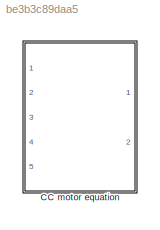
MODEL slx_be3b3c89daa5
KIND library
CONFIG AbsTol = auto
CONFIG EnableMultiTasking = off
CONFIG FixedStep = auto
CONFIG MaxStep = auto
CONFIG MinStep = auto
CONFIG RelTol = 1e-3
CONFIG SampleTimeConstraint = Unconstrained
CONFIG Solver = VariableStepAuto
CONFIG SolverName = VariableStepAuto
CONFIG StartTime = 0.0
CONFIG StopTime = 10.0
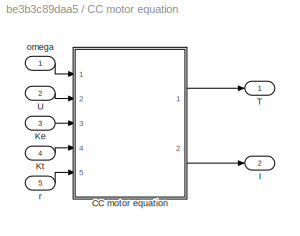
BLOCK [SubSystem] CC motor equation
  Ports = [5, 2]
  RequestExecContextInheritance = off
  Variant = off
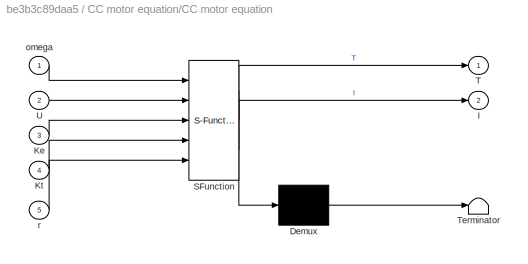
BLOCK [SubSystem] CC motor equation/CC motor equation
  ErrorFcn = Stateflow.Translate.translate
  PermitHierarchicalResolution = ExplicitOnly
  Ports = [5, 2]
  RequestExecContextInheritance = off
  SFBlockType = MATLAB Function
  TreatAsAtomicUnit = on
  Variant = off
BLOCK [Demux] CC motor equation/CC motor equation/ Demux 
  Outputs = 1
  Ports = [1, 1]
BLOCK [S-Function] CC motor equation/CC motor equation/ SFunction 
  EnableBusSupport = off
  FunctionName = sf_sfun
  PortCounts = [5 3]
  Ports = [5, 3]
  SFcnIsStateOwnerBlock = off
  SFunctionDeploymentMode = off
  Tag = Stateflow S-Function ccmotor_lib 2
BLOCK [Terminator] CC motor equation/CC motor equation/ Terminator 
BLOCK [Outport] CC motor equation/CC motor equation/I
  IconDisplay = Port number
  Port = 2
BLOCK [Inport] CC motor equation/CC motor equation/Ke
  IconDisplay = Port number
  Port = 3
BLOCK [Inport] CC motor equation/CC motor equation/Kt
  IconDisplay = Port number
  Port = 4
BLOCK [Outport] CC motor equation/CC motor equation/T
  IconDisplay = Port number
BLOCK [Inport] CC motor equation/CC motor equation/U
  IconDisplay = Port number
  Port = 2
BLOCK [Inport] CC motor equation/CC motor equation/omega
  IconDisplay = Port number
BLOCK [Inport] CC motor equation/CC motor equation/r
  IconDisplay = Port number
  Port = 5
BLOCK [Outport] CC motor equation/I
  IconDisplay = Port number
  Port = 2
BLOCK [Inport] CC motor equation/Ke
  IconDisplay = Port number
  Port = 3
BLOCK [Inport] CC motor equation/Kt
  IconDisplay = Port number
  Port = 4
BLOCK [Outport] CC motor equation/T
  IconDisplay = Port number
BLOCK [Inport] CC motor equation/U
  IconDisplay = Port number
  Port = 2
BLOCK [Inport] CC motor equation/omega
  IconDisplay = Port number
BLOCK [Inport] CC motor equation/r
  IconDisplay = Port number
  Port = 5
LINE CC motor equation/CC motor equation:1 -> CC motor equation/T:1
LINE CC motor equation/CC motor equation:2 -> CC motor equation/I:1
LINE CC motor equation/Ke:1 -> CC motor equation/CC motor equation:3
LINE CC motor equation/Kt:1 -> CC motor equation/CC motor equation:4
LINE CC motor equation/U:1 -> CC motor equation/CC motor equation:2
LINE CC motor equation/omega:1 -> CC motor equation/CC motor equation:1
LINE CC motor equation/r:1 -> CC motor equation/CC motor equation:5
CHART CC motor equation/CC motor equation states=1 transitions=1
  STATE_LABEL 'eML_blk_kernel()'
  STATE_LABEL 'SCRIPT:\nfunction [T,I]= fcn(omega,U,Ke,Kt,r)\n% torque\nT = (U - Ke*omega)*Kt/r;\n% current\nI = T/Kt;\n'
